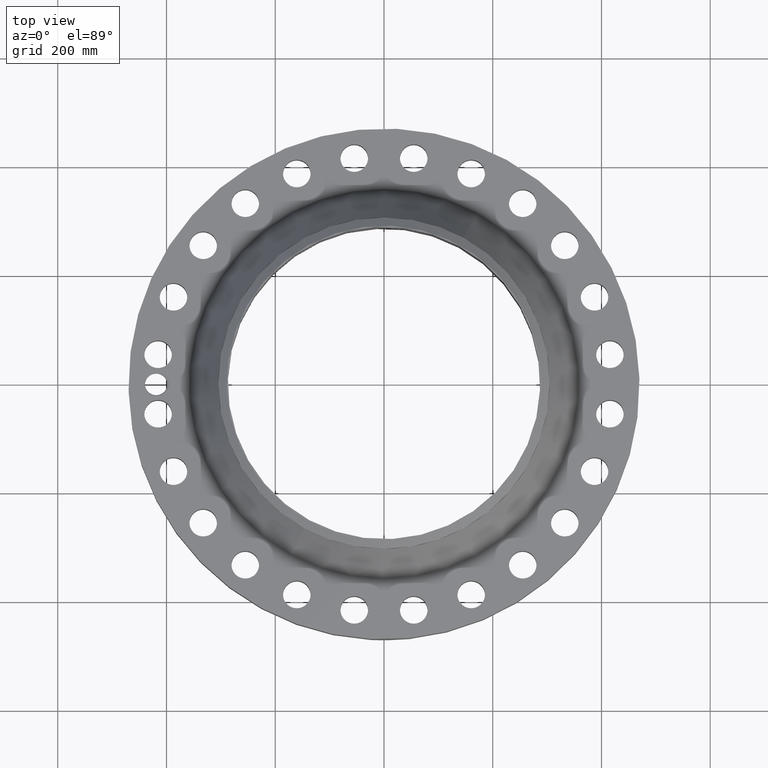
[diagram: clean part render]
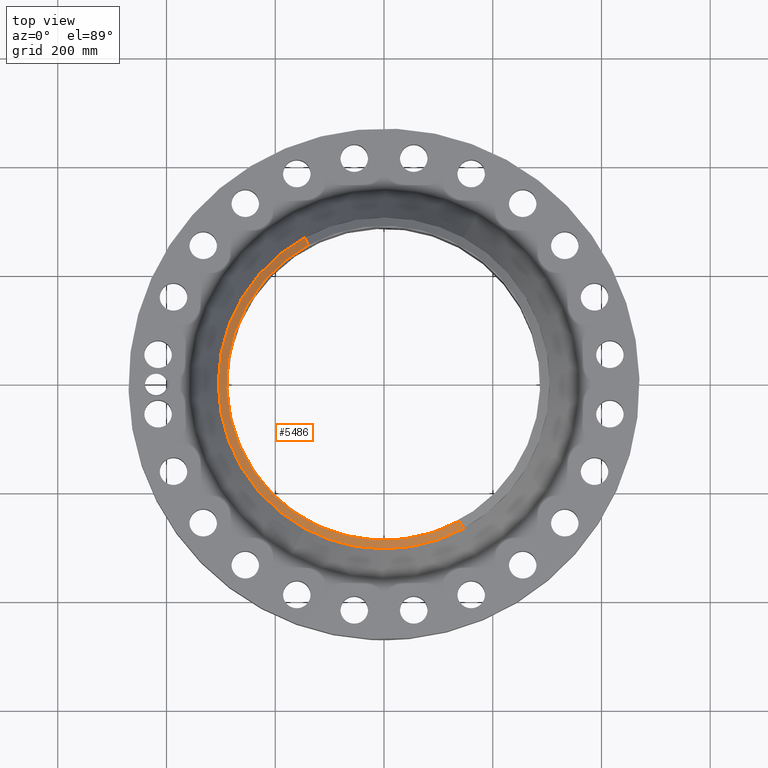
[diagram: same view with one face highlighted and labeled with its STEP entity id]
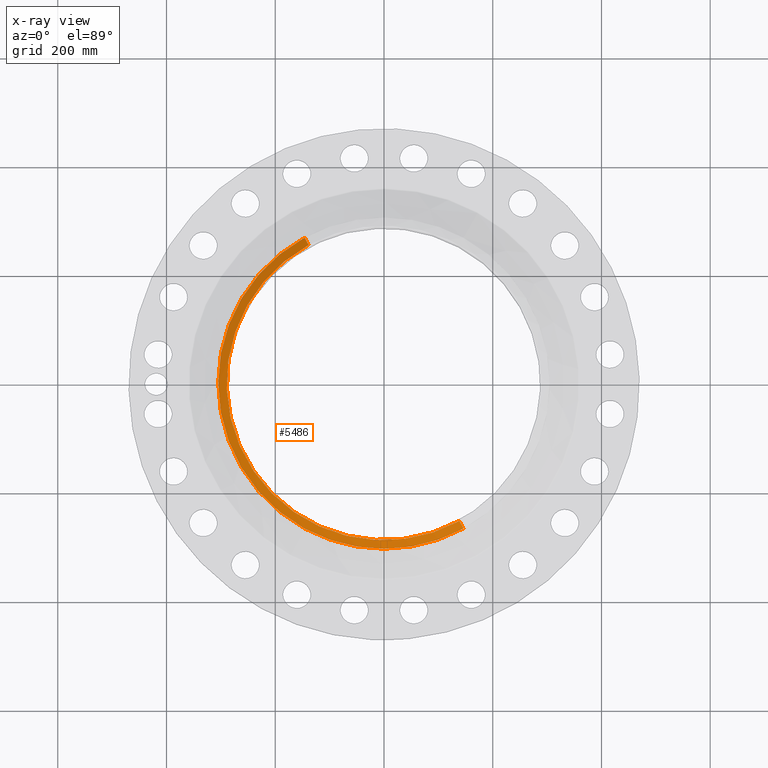
[diagram: x-ray of the same camera — body ghosted, the highlighted face saturated]
A machine part, top view. The second image highlights one B-rep face of the part: STEP entity #5486.
The next image is the same camera in x-ray: the body ghosted, the highlighted face saturated — about 0% of this face is hidden behind the body in this view.
In plain terms, the highlighted conical surface has half-angle 52.5 deg.
Its self-contained STEP definition (entity closure, byte-faithful):
#4285=AXIS2_PLACEMENT_3D('Circle Axis2P3D',#4283,#4284,$) ;
#4298=AXIS2_PLACEMENT_3D('Circle Axis2P3D',#4296,#4297,$) ;
#5100=AXIS2_PLACEMENT_3D('Circle Axis2P3D',#5098,#5099,$) ;
#5459=AXIS2_PLACEMENT_3D('Cone Axis2P3D',#5456,#5457,#5458) ;
#4266=CARTESIAN_POINT('Vertex',(-5.75310646327,-10.5309907427,7.78249848017)) ;
#4280=CARTESIAN_POINT('Vertex',(5.75310646327,-10.5309907427,7.78249848017)) ;
#4283=CARTESIAN_POINT('Axis2P3D Location',(0.,0.,7.78249848017)) ;
#4296=CARTESIAN_POINT('Axis2P3D Location',(0.,0.,7.78249848017)) ;
#4300=CARTESIAN_POINT('Vertex',(-5.75310646327,10.5309907427,7.78249848017)) ;
#5093=CARTESIAN_POINT('Vertex',(5.46101173512,-9.99631492927,8.25000000003)) ;
#5095=CARTESIAN_POINT('Vertex',(-5.46101173512,9.99631492927,8.25000000003)) ;
#5098=CARTESIAN_POINT('Axis2P3D Location',(0.,0.,8.25000000003)) ;
#5456=CARTESIAN_POINT('Axis2P3D Location',(0.,0.,8.25000000003)) ;
#5461=CARTESIAN_POINT('Line Origine',(-5.6070590992,10.263652836,8.0162492401)) ;
#5466=CARTESIAN_POINT('Line Origine',(5.6070590992,-10.263652836,8.0162492401)) ;
#4284=DIRECTION('Axis2P3D Direction',(0.,0.,-0.0393700787402)) ;
#4297=DIRECTION('Axis2P3D Direction',(0.,0.,-0.0393700787402)) ;
#5099=DIRECTION('Axis2P3D Direction',(0.,0.,-0.0393700787402)) ;
#5457=DIRECTION('Axis2P3D Direction',(-0.,-0.,-0.0393700787402)) ;
#5458=DIRECTION('Axis2P3D XDirection',(0.0188750212049,-0.0345504945626,0.)) ;
#5462=DIRECTION('Vector Direction',(-0.014974561121,0.02741075027,-0.023966985394)) ;
#5467=DIRECTION('Vector Direction',(0.014974561121,-0.02741075027,-0.023966985394)) ;
#5463=VECTOR('Line Direction',#5462,0.0393700787402) ;
#5468=VECTOR('Line Direction',#5467,0.0393700787402) ;
#5480=ORIENTED_EDGE('',*,*,#5470,.F.) ;
#5481=ORIENTED_EDGE('',*,*,#5102,.F.) ;
#5482=ORIENTED_EDGE('',*,*,#5465,.T.) ;
#5483=ORIENTED_EDGE('',*,*,#4302,.T.) ;
#5484=ORIENTED_EDGE('',*,*,#4287,.F.) ;
#5486=ADVANCED_FACE('PartBody',(#5485),#5460,.T.) ;
#4286=CIRCLE('generated circle',#4285,12.) ;
#4299=CIRCLE('generated circle',#4298,12.) ;
#5101=CIRCLE('generated circle',#5100,11.3907401575) ;
#5460=CONICAL_SURFACE('Cone',#5459,11.3907401575,0.916297857297) ;
#4287=EDGE_CURVE('',#4281,#4267,#4286,.T.) ;
#4302=EDGE_CURVE('',#4301,#4267,#4299,.F.) ;
#5102=EDGE_CURVE('',#5096,#5094,#5101,.F.) ;
#5465=EDGE_CURVE('',#5096,#4301,#5464,.T.) ;
#5470=EDGE_CURVE('',#5094,#4281,#5469,.T.) ;
#5479=EDGE_LOOP('',(#5480,#5481,#5482,#5483,#5484)) ;
#5485=FACE_OUTER_BOUND('',#5479,.T.) ;
#5464=LINE('Line',#5461,#5463) ;
#5469=LINE('Line',#5466,#5468) ;
#4267=VERTEX_POINT('',#4266) ;
#4281=VERTEX_POINT('',#4280) ;
#4301=VERTEX_POINT('',#4300) ;
#5094=VERTEX_POINT('',#5093) ;
#5096=VERTEX_POINT('',#5095) ;